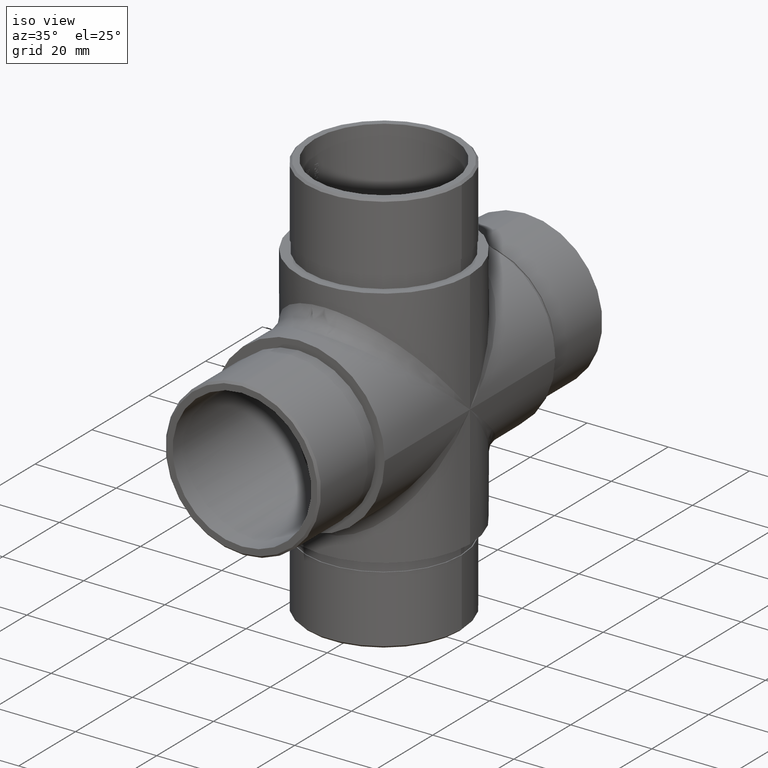
[diagram: clean part render]
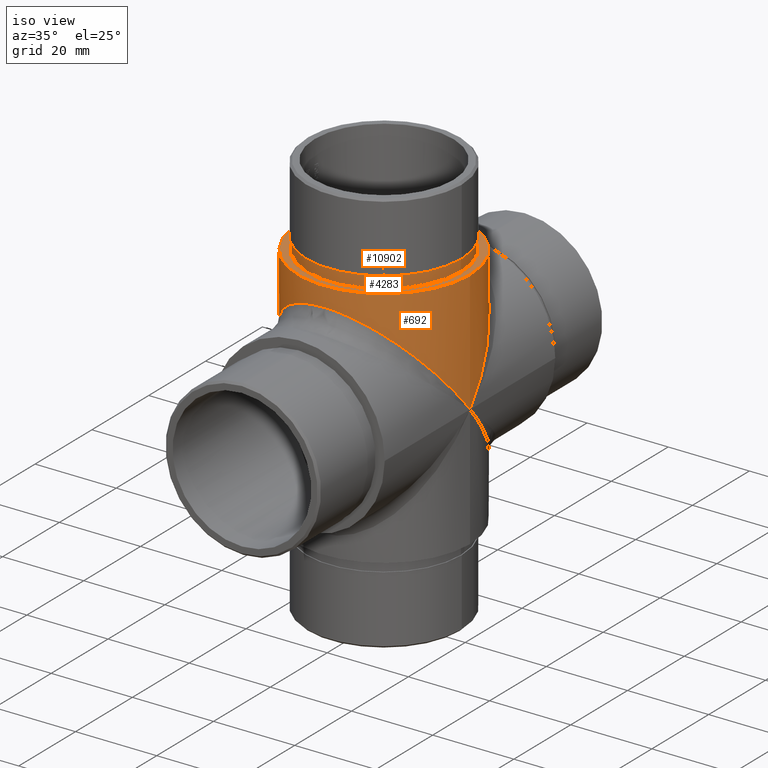
[diagram: same view with one multi-face feature highlighted, each face labeled with its STEP entity id]
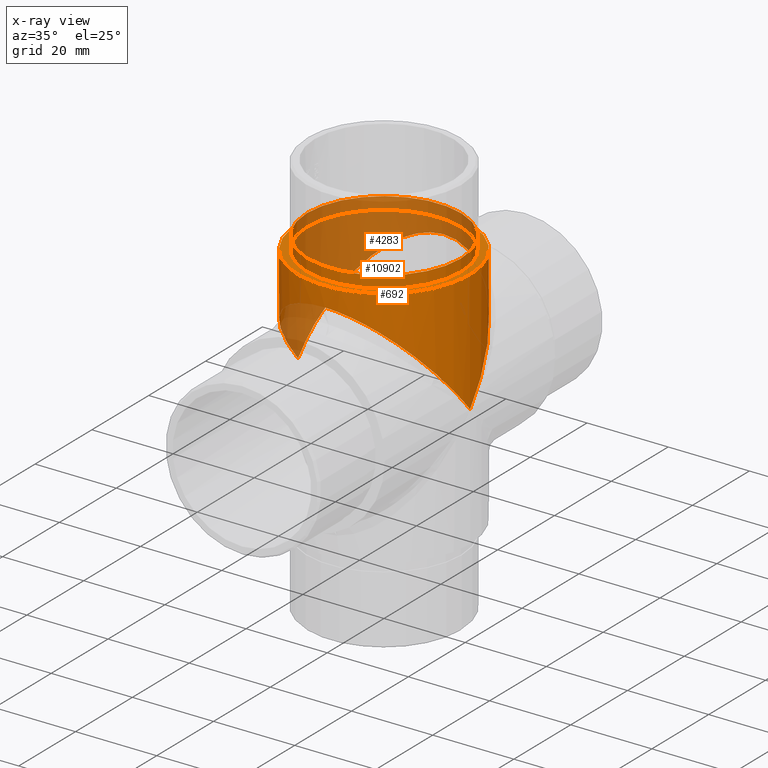
[diagram: x-ray of the same camera — body ghosted, the whole feature saturated]
A machine part, iso view. The highlighted faces form ONE feature: a stepped (counterbored) hole: 2 coaxial cylindrical walls of radii 18.95 -> 21.2 mm joined by 1 annular planar shoulder face(s). The faces share edges in the B-rep.
The next image is the same camera in x-ray: the body ghosted and the whole hole feature saturated, so the bore chain is visible through the body.
Their STEP definitions:
[1] entity #692 (Cylinder):
#124 = DIRECTION ( 'NONE',  ( -1.000000000000000000, 0.0000000000000000000, 0.0000000000000000000 ) ) ;
#610 = EDGE_CURVE ( 'NONE', #1507, #3645, #2059, .T. ) ;
#692 = ADVANCED_FACE ( 'NONE', ( #11331, #10391 ), #8291, .T. ) ;
#1507 = VERTEX_POINT ( 'NONE', #11691 ) ;
#2059 =( BOUNDED_CURVE ( )  B_SPLINE_CURVE ( 3, ( #3039, #10414, #9361, #12298 ),
 .UNSPECIFIED., .F., .T. ) 
 B_SPLINE_CURVE_WITH_KNOTS ( ( 4, 4 ),
 ( 1.570796326794896600, 4.712388980384689700 ),
 .UNSPECIFIED. ) 
 CURVE ( )  GEOMETRIC_REPRESENTATION_ITEM ( )  RATIONAL_B_SPLINE_CURVE ( ( 1.000000000000000000, 0.3333333333333333700, 0.3333333333333333700, 1.000000000000000000 ) ) 
 REPRESENTATION_ITEM ( '' )  );
#2095 = CARTESIAN_POINT ( 'NONE',  ( 21.19999999999999900, 0.0000000000000000000, 0.0000000000000000000 ) ) ;
#2957 = ORIENTED_EDGE ( 'NONE', *, *, #7846, .T. ) ;
#3039 = CARTESIAN_POINT ( 'NONE',  ( -21.19999999999999900, 0.0000000000000000000, 0.0000000000000000000 ) ) ;
#3645 = VERTEX_POINT ( 'NONE', #2095 ) ;
#4020 = AXIS2_PLACEMENT_3D ( 'NONE', #4325, #9459, #124 ) ;
#4325 = CARTESIAN_POINT ( 'NONE',  ( 0.0000000000000000000, 0.0000000000000000000, 30.00000000000000000 ) ) ;
#4993 = ORIENTED_EDGE ( 'NONE', *, *, #12207, .F. ) ;
#5158 = CARTESIAN_POINT ( 'NONE',  ( 21.19999999999999900, 0.0000000000000000000, 30.00000000000000000 ) ) ;
#5667 = CIRCLE ( 'NONE', #11872, 21.19999999999999900 ) ;
#5737 = ORIENTED_EDGE ( 'NONE', *, *, #610, .T. ) ;
#5895 = CARTESIAN_POINT ( 'NONE',  ( 0.0000000000000000000, 0.0000000000000000000, 30.00000000000000000 ) ) ;
#6002 = EDGE_LOOP ( 'NONE', ( #4993 ) ) ;
#6241 = EDGE_LOOP ( 'NONE', ( #2957, #5737 ) ) ;
#7198 =( BOUNDED_CURVE ( )  B_SPLINE_CURVE ( 3, ( #7919, #10003, #9209, #8092 ),
 .UNSPECIFIED., .F., .T. ) 
 B_SPLINE_CURVE_WITH_KNOTS ( ( 4, 4 ),
 ( 1.570796326794896600, 4.712388980384689700 ),
 .UNSPECIFIED. ) 
 CURVE ( )  GEOMETRIC_REPRESENTATION_ITEM ( )  RATIONAL_B_SPLINE_CURVE ( ( 1.000000000000000000, 0.3333333333333333700, 0.3333333333333333700, 1.000000000000000000 ) ) 
 REPRESENTATION_ITEM ( '' )  );
#7846 = EDGE_CURVE ( 'NONE', #3645, #1507, #7198, .T. ) ;
#7919 = CARTESIAN_POINT ( 'NONE',  ( 21.19999999999999900, 0.0000000000000000000, 0.0000000000000000000 ) ) ;
#8092 = CARTESIAN_POINT ( 'NONE',  ( -21.19999999999999900, 0.0000000000000000000, 0.0000000000000000000 ) ) ;
#8291 = CYLINDRICAL_SURFACE ( 'NONE', #4020, 21.19999999999999900 ) ;
#9209 = CARTESIAN_POINT ( 'NONE',  ( -21.19999999999998900, 42.39999999999999900, 50.39999999999999900 ) ) ;
#9361 = CARTESIAN_POINT ( 'NONE',  ( 21.19999999999998900, -42.39999999999999900, 50.39999999999999900 ) ) ;
#9459 = DIRECTION ( 'NONE',  ( -0.0000000000000000000, -0.0000000000000000000, -1.000000000000000000 ) ) ;
#10003 = CARTESIAN_POINT ( 'NONE',  ( 21.19999999999999900, 42.39999999999999100, 50.39999999999999900 ) ) ;
#10391 = FACE_OUTER_BOUND ( 'NONE', #6241, .T. ) ;
#10414 = CARTESIAN_POINT ( 'NONE',  ( -21.19999999999999900, -42.39999999999999100, 50.39999999999999900 ) ) ;
#11331 = FACE_OUTER_BOUND ( 'NONE', #6002, .T. ) ;
#11691 = CARTESIAN_POINT ( 'NONE',  ( -21.19999999999999900, 0.0000000000000000000, 0.0000000000000000000 ) ) ;
#11766 = VERTEX_POINT ( 'NONE', #5158 ) ;
#11872 = AXIS2_PLACEMENT_3D ( 'NONE', #5895, #13048, #13084 ) ;
#12207 = EDGE_CURVE ( 'NONE', #11766, #11766, #5667, .T. ) ;
#12298 = CARTESIAN_POINT ( 'NONE',  ( 21.19999999999999900, 0.0000000000000000000, 0.0000000000000000000 ) ) ;
#13048 = DIRECTION ( 'NONE',  ( 0.0000000000000000000, 0.0000000000000000000, 1.000000000000000000 ) ) ;
#13084 = DIRECTION ( 'NONE',  ( 1.000000000000000000, 0.0000000000000000000, 0.0000000000000000000 ) ) ;
[2] entity #4283 (Cylinder):
#146 = ORIENTED_EDGE ( 'NONE', *, *, #12150, .F. ) ;
#1027 = AXIS2_PLACEMENT_3D ( 'NONE', #12674, #10795, #2393 ) ;
#1144 = VERTEX_POINT ( 'NONE', #3205 ) ;
#2393 = DIRECTION ( 'NONE',  ( -1.000000000000000000, 0.0000000000000000000, 0.0000000000000000000 ) ) ;
#2649 = AXIS2_PLACEMENT_3D ( 'NONE', #7848, #8931, #4780 ) ;
#3205 = CARTESIAN_POINT ( 'NONE',  ( 18.95000000000000300, 0.0000000000000000000, 33.00000000000000000 ) ) ;
#3894 = CIRCLE ( 'NONE', #2649, 18.95000000000000300 ) ;
#4283 = ADVANCED_FACE ( 'NONE', ( #12215, #9530 ), #11436, .T. ) ;
#4671 = CARTESIAN_POINT ( 'NONE',  ( 0.0000000000000000000, 0.0000000000000000000, 30.00000000000000000 ) ) ;
#4780 = DIRECTION ( 'NONE',  ( 1.000000000000000000, 0.0000000000000000000, 0.0000000000000000000 ) ) ;
#5559 = EDGE_CURVE ( 'NONE', #8091, #8091, #6101, .T. ) ;
#5876 = DIRECTION ( 'NONE',  ( 1.000000000000000000, 0.0000000000000000000, 0.0000000000000000000 ) ) ;
#6101 = CIRCLE ( 'NONE', #9324, 18.95000000000000300 ) ;
#7848 = CARTESIAN_POINT ( 'NONE',  ( 0.0000000000000000000, 0.0000000000000000000, 33.00000000000000000 ) ) ;
#8091 = VERTEX_POINT ( 'NONE', #12147 ) ;
#8931 = DIRECTION ( 'NONE',  ( 0.0000000000000000000, 0.0000000000000000000, 1.000000000000000000 ) ) ;
#9324 = AXIS2_PLACEMENT_3D ( 'NONE', #4671, #11829, #5876 ) ;
#9530 = FACE_OUTER_BOUND ( 'NONE', #13103, .T. ) ;
#10795 = DIRECTION ( 'NONE',  ( -0.0000000000000000000, -0.0000000000000000000, -1.000000000000000000 ) ) ;
#11061 = EDGE_LOOP ( 'NONE', ( #146 ) ) ;
#11436 = CYLINDRICAL_SURFACE ( 'NONE', #1027, 18.95000000000000300 ) ;
#11722 = ORIENTED_EDGE ( 'NONE', *, *, #5559, .T. ) ;
#11829 = DIRECTION ( 'NONE',  ( 0.0000000000000000000, 0.0000000000000000000, 1.000000000000000000 ) ) ;
#12147 = CARTESIAN_POINT ( 'NONE',  ( 18.95000000000000300, 0.0000000000000000000, 30.00000000000000000 ) ) ;
#12150 = EDGE_CURVE ( 'NONE', #1144, #1144, #3894, .T. ) ;
#12215 = FACE_OUTER_BOUND ( 'NONE', #11061, .T. ) ;
#12674 = CARTESIAN_POINT ( 'NONE',  ( 0.0000000000000000000, 0.0000000000000000000, 33.00000000000000000 ) ) ;
#13103 = EDGE_LOOP ( 'NONE', ( #11722 ) ) ;
[3] entity #10902 (Plane):
#738 = DIRECTION ( 'NONE',  ( 1.000000000000000000, 0.0000000000000000000, -0.0000000000000000000 ) ) ;
#814 = ORIENTED_EDGE ( 'NONE', *, *, #5559, .F. ) ;
#2191 = EDGE_LOOP ( 'NONE', ( #814 ) ) ;
#2629 = PLANE ( 'NONE',  #3695 ) ;
#3695 = AXIS2_PLACEMENT_3D ( 'NONE', #10009, #8015, #738 ) ;
#4318 = FACE_BOUND ( 'NONE', #2191, .T. ) ;
#4671 = CARTESIAN_POINT ( 'NONE',  ( 0.0000000000000000000, 0.0000000000000000000, 30.00000000000000000 ) ) ;
#5158 = CARTESIAN_POINT ( 'NONE',  ( 21.19999999999999900, 0.0000000000000000000, 30.00000000000000000 ) ) ;
#5559 = EDGE_CURVE ( 'NONE', #8091, #8091, #6101, .T. ) ;
#5667 = CIRCLE ( 'NONE', #11872, 21.19999999999999900 ) ;
#5876 = DIRECTION ( 'NONE',  ( 1.000000000000000000, 0.0000000000000000000, 0.0000000000000000000 ) ) ;
#5895 = CARTESIAN_POINT ( 'NONE',  ( 0.0000000000000000000, 0.0000000000000000000, 30.00000000000000000 ) ) ;
#6101 = CIRCLE ( 'NONE', #9324, 18.95000000000000300 ) ;
#8015 = DIRECTION ( 'NONE',  ( 0.0000000000000000000, 0.0000000000000000000, 1.000000000000000000 ) ) ;
#8091 = VERTEX_POINT ( 'NONE', #12147 ) ;
#8353 = FACE_OUTER_BOUND ( 'NONE', #10097, .T. ) ;
#9324 = AXIS2_PLACEMENT_3D ( 'NONE', #4671, #11829, #5876 ) ;
#10009 = CARTESIAN_POINT ( 'NONE',  ( 0.0000000000000000000, 0.0000000000000000000, 30.00000000000000000 ) ) ;
#10097 = EDGE_LOOP ( 'NONE', ( #11748 ) ) ;
#10902 = ADVANCED_FACE ( 'NONE', ( #8353, #4318 ), #2629, .T. ) ;
#11748 = ORIENTED_EDGE ( 'NONE', *, *, #12207, .T. ) ;
#11766 = VERTEX_POINT ( 'NONE', #5158 ) ;
#11829 = DIRECTION ( 'NONE',  ( 0.0000000000000000000, 0.0000000000000000000, 1.000000000000000000 ) ) ;
#11872 = AXIS2_PLACEMENT_3D ( 'NONE', #5895, #13048, #13084 ) ;
#12147 = CARTESIAN_POINT ( 'NONE',  ( 18.95000000000000300, 0.0000000000000000000, 30.00000000000000000 ) ) ;
#12207 = EDGE_CURVE ( 'NONE', #11766, #11766, #5667, .T. ) ;
#13048 = DIRECTION ( 'NONE',  ( 0.0000000000000000000, 0.0000000000000000000, 1.000000000000000000 ) ) ;
#13084 = DIRECTION ( 'NONE',  ( 1.000000000000000000, 0.0000000000000000000, 0.0000000000000000000 ) ) ;